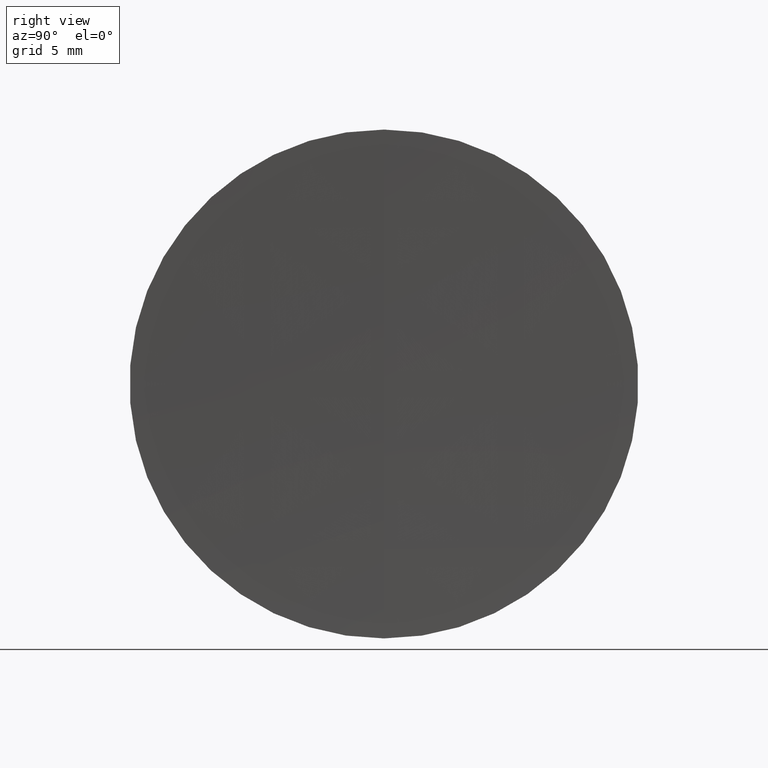
[diagram: clean part render]
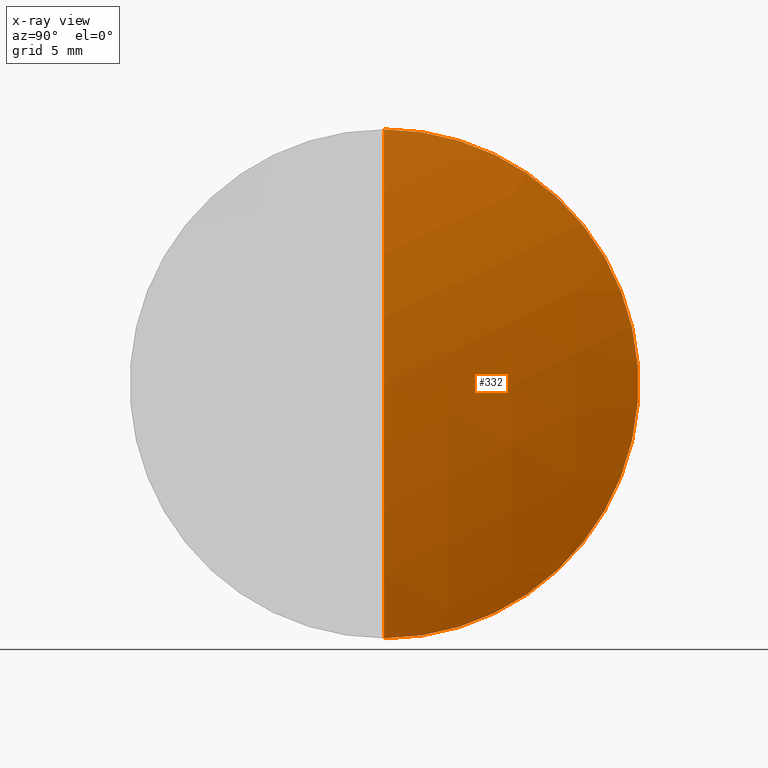
[diagram: x-ray — body ghosted, one internal face saturated and labeled with its STEP entity id]
A machine part, right view, then the same camera in x-ray: the body is ghosted and one INTERNAL B-rep face — a face not visible from any outside direction — is saturated and labeled: STEP entity #332.
In plain terms, the highlighted spherical surface has radius 42.17 mm.
Its self-contained STEP definition (entity closure, byte-faithful):
#5 = AXIS2_PLACEMENT_3D ( 'NONE', #16, #152, #75 ) ;
#9 = AXIS2_PLACEMENT_3D ( 'NONE', #262, #78, #234 ) ;
#16 = CARTESIAN_POINT ( 'NONE',  ( 263.0842744864173700, 0.0000000000000000000, 6.938893903138834500E-015 ) ) ;
#29 = EDGE_CURVE ( 'NONE', #60, #182, #166, .T. ) ;
#38 = ORIENTED_EDGE ( 'NONE', *, *, #327, .T. ) ;
#43 = CARTESIAN_POINT ( 'NONE',  ( 305.2542744864173300, 0.0000000000000000000, 9.521061679141028100E-015 ) ) ;
#47 = DIRECTION ( 'NONE',  ( 0.0000000000000000000, 0.0000000000000000000, -1.000000000000000000 ) ) ;
#50 = EDGE_CURVE ( 'NONE', #107, #60, #300, .T. ) ;
#51 = AXIS2_PLACEMENT_3D ( 'NONE', #76, #232, #47 ) ;
#60 = VERTEX_POINT ( 'NONE', #130 ) ;
#75 = DIRECTION ( 'NONE',  ( 0.0000000000000000000, 0.0000000000000000000, 1.000000000000000000 ) ) ;
#76 = CARTESIAN_POINT ( 'NONE',  ( 263.0842744864173700, 0.0000000000000000000, 6.938893903138834500E-015 ) ) ;
#78 = DIRECTION ( 'NONE',  ( -1.000000000000000000, -0.0000000000000000000, -0.0000000000000000000 ) ) ;
#100 = DIRECTION ( 'NONE',  ( 0.0000000000000000000, -1.224646799147353200E-016, 1.000000000000000000 ) ) ;
#107 = VERTEX_POINT ( 'NONE', #43 ) ;
#126 = CARTESIAN_POINT ( 'NONE',  ( 263.0842744864173700, 0.0000000000000000000, 6.938893903138834500E-015 ) ) ;
#130 = CARTESIAN_POINT ( 'NONE',  ( 303.2964480163323600, 0.0000000000000000000, 12.70000000000000600 ) ) ;
#152 = DIRECTION ( 'NONE',  ( 0.0000000000000000000, 1.000000000000000000, 0.0000000000000000000 ) ) ;
#166 = CIRCLE ( 'NONE', #9, 12.70000000000000600 ) ;
#175 = ORIENTED_EDGE ( 'NONE', *, *, #50, .F. ) ;
#182 = VERTEX_POINT ( 'NONE', #309 ) ;
#189 = FACE_OUTER_BOUND ( 'NONE', #325, .T. ) ;
#212 = CIRCLE ( 'NONE', #317, 42.16999999999998000 ) ;
#232 = DIRECTION ( 'NONE',  ( 0.0000000000000000000, -1.000000000000000000, 0.0000000000000000000 ) ) ;
#234 = DIRECTION ( 'NONE',  ( 0.0000000000000000000, 0.0000000000000000000, 1.000000000000000000 ) ) ;
#235 = SPHERICAL_SURFACE ( 'NONE', #5, 42.16999999999998000 ) ;
#262 = CARTESIAN_POINT ( 'NONE',  ( 303.2964480163323600, 0.0000000000000000000, 0.0000000000000000000 ) ) ;
#283 = DIRECTION ( 'NONE',  ( -0.0000000000000000000, 1.000000000000000000, 1.224646799147353200E-016 ) ) ;
#300 = CIRCLE ( 'NONE', #51, 42.16999999999998000 ) ;
#301 = ORIENTED_EDGE ( 'NONE', *, *, #29, .F. ) ;
#309 = CARTESIAN_POINT ( 'NONE',  ( 303.2964480163323600, 1.555301434917139200E-015, -12.70000000000000600 ) ) ;
#317 = AXIS2_PLACEMENT_3D ( 'NONE', #126, #283, #100 ) ;
#325 = EDGE_LOOP ( 'NONE', ( #175, #38, #301 ) ) ;
#327 = EDGE_CURVE ( 'NONE', #107, #182, #212, .T. ) ;
#332 = ADVANCED_FACE ( 'NONE', ( #189 ), #235, .T. ) ;